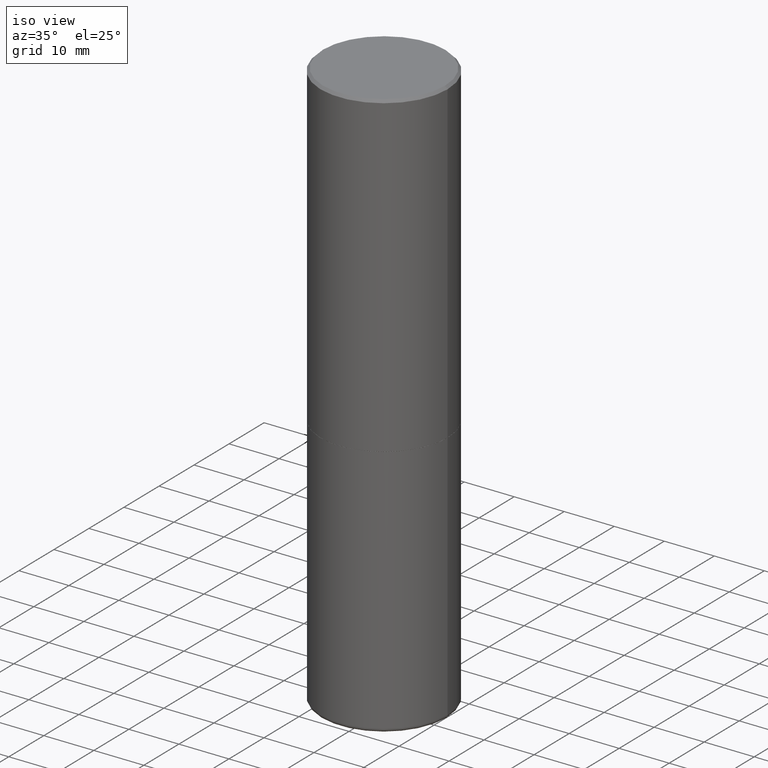
[diagram: clean part render]
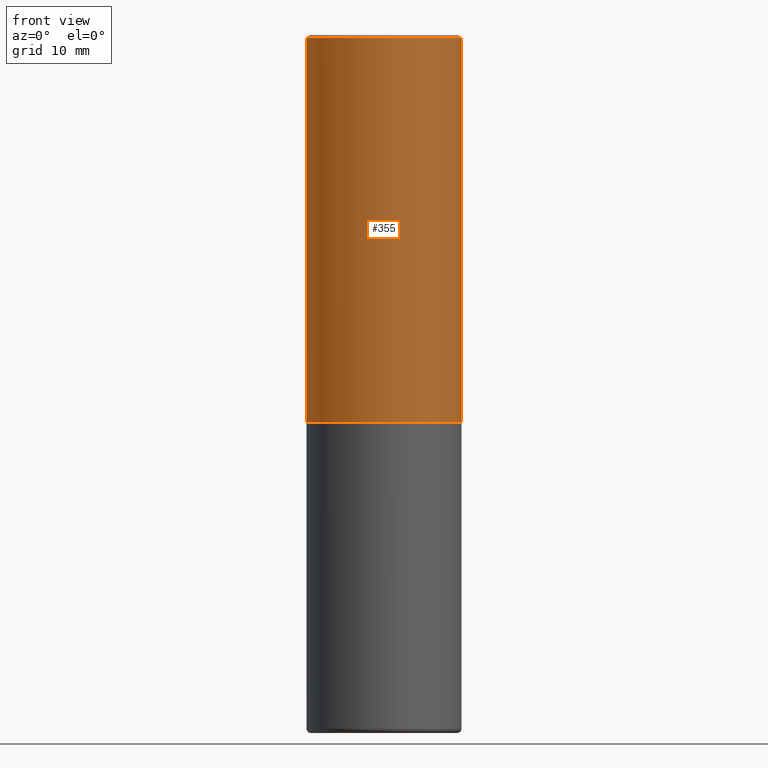
[diagram: tour spotlight — one face highlighted and labeled with its STEP entity id]
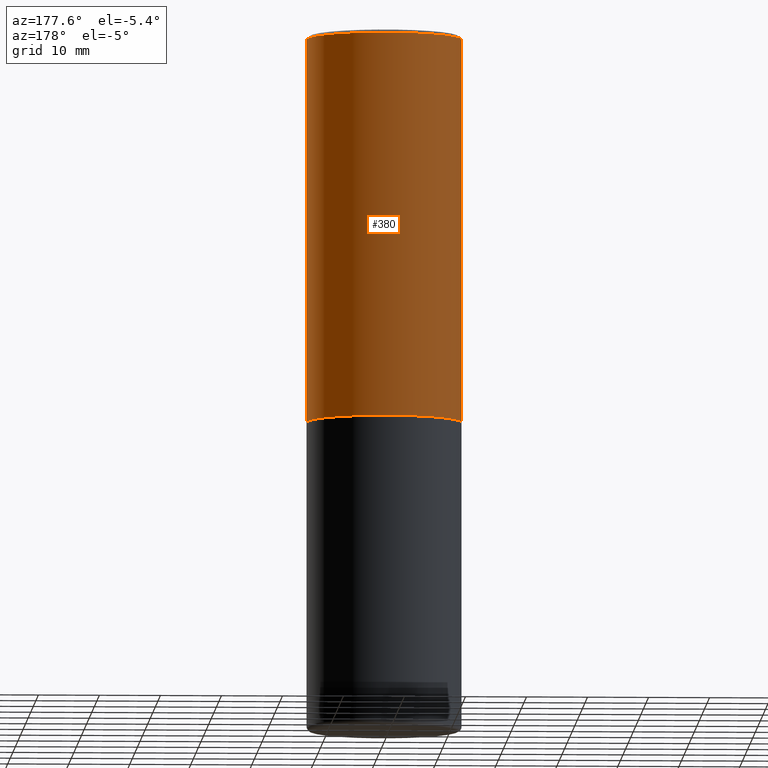
[diagram: tour spotlight — one face highlighted and labeled with its STEP entity id]
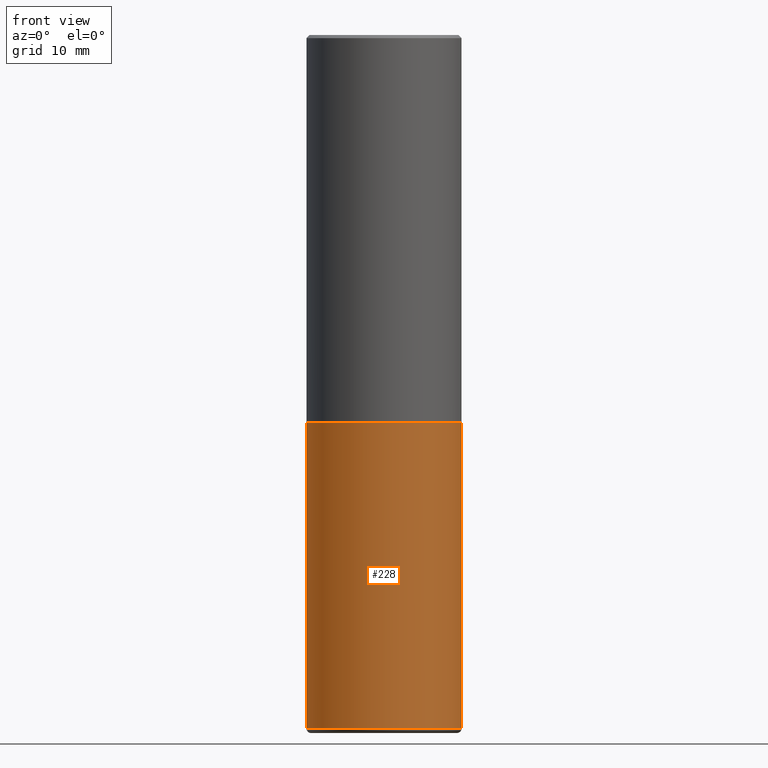
[diagram: tour spotlight — one face highlighted and labeled with its STEP entity id]
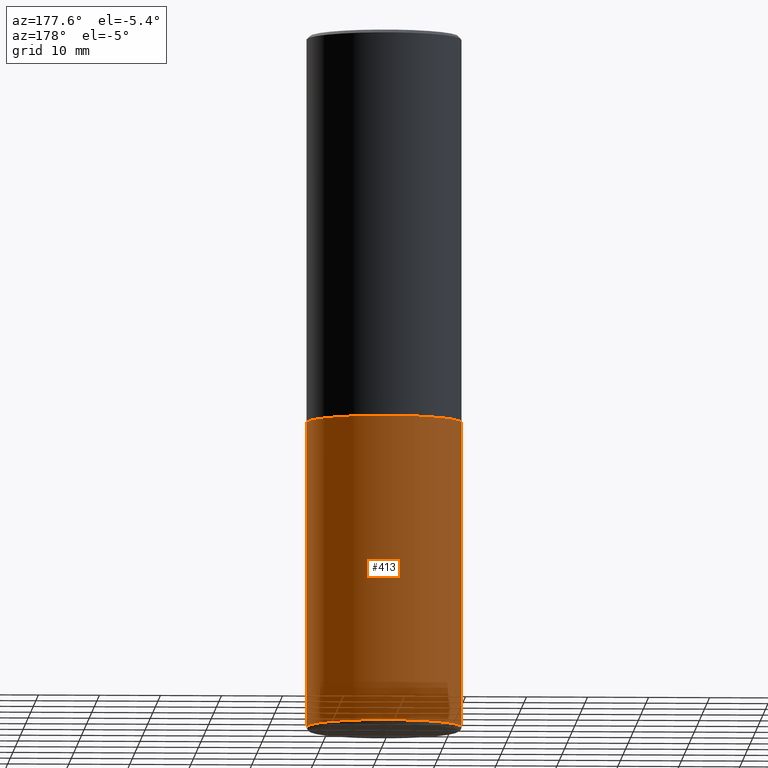
[diagram: tour spotlight — one face highlighted and labeled with its STEP entity id]
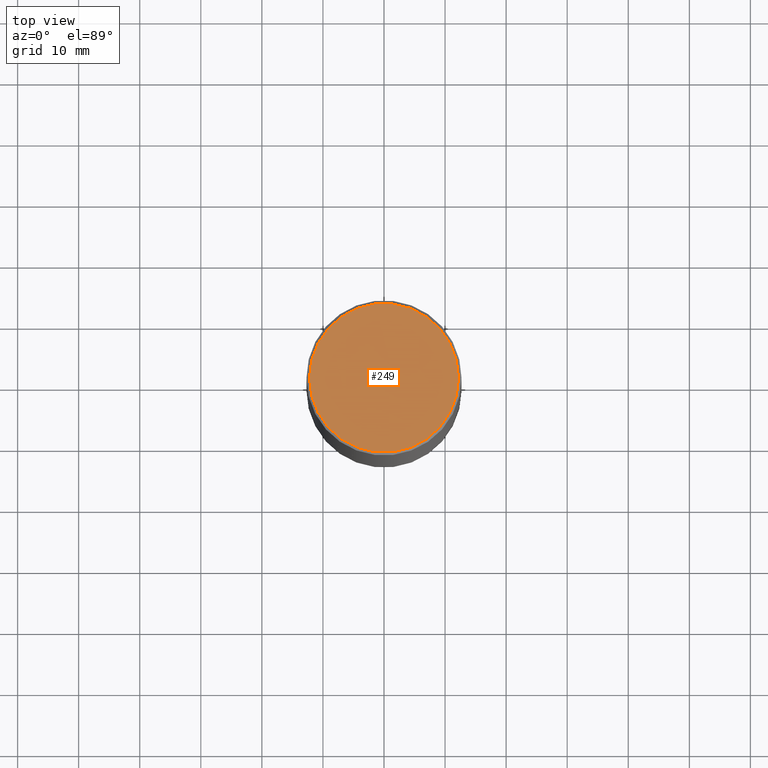
[diagram: tour spotlight — one face highlighted and labeled with its STEP entity id]
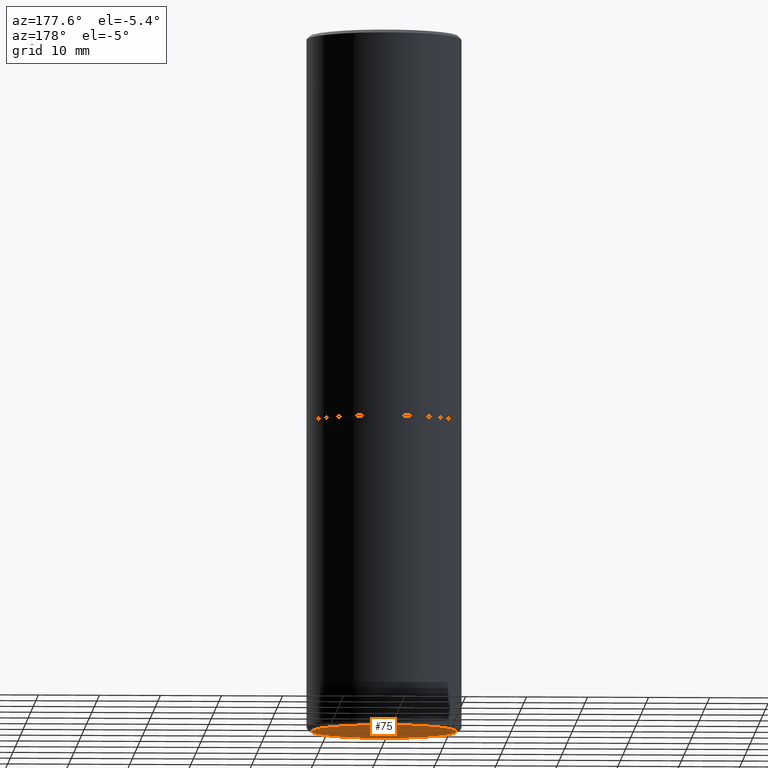
[diagram: tour spotlight — one face highlighted and labeled with its STEP entity id]
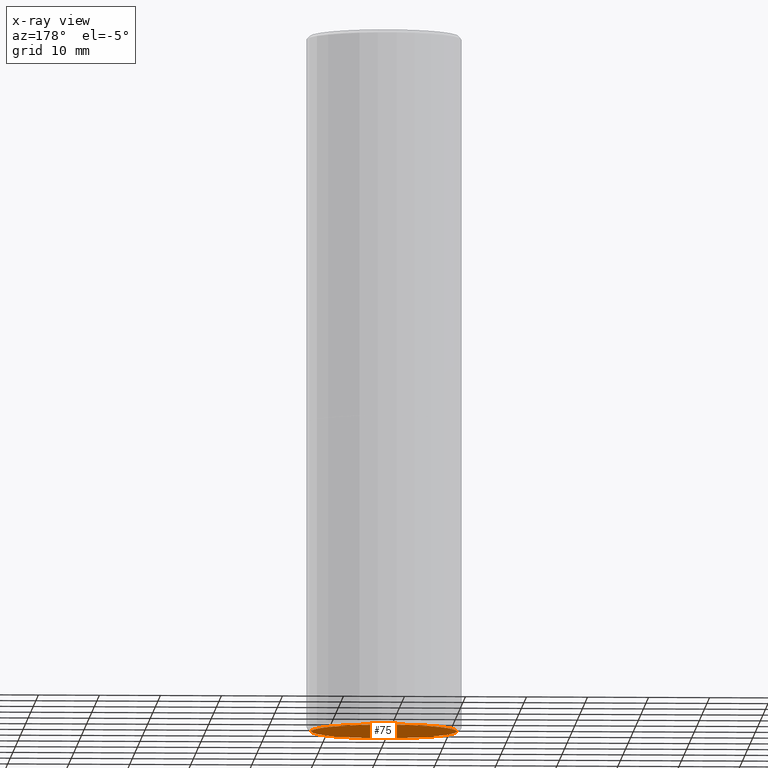
[diagram: x-ray of the same camera — body ghosted, this tour face saturated]
A machine part: a face-by-face anatomy tour. The part has 14 B-rep faces; the first image is the clean iso view, then the 6 largest visible faces are spotlighted one at a time (largest first), each with its STEP entity span.

Face 1 — front view, entity #355. In plain terms, the highlighted cylindrical surface (partial cylindrical patch) has radius 12.7 mm, axis along (-0, 0, 1).
Definition (entity closure, byte-faithful):
#1 = CARTESIAN_POINT ( 'NONE',  ( -0.4999999999999999445, 3.421651712066269663E-15, -0.02000000000000010797 ) ) ;
#15 = DIRECTION ( 'NONE',  ( 1.000000000000000000, -6.982962677686267499E-15, 4.876176775795935793E-29 ) ) ;
#48 = VERTEX_POINT ( 'NONE', #117 ) ;
#49 = DIRECTION ( 'NONE',  ( -2.445468806185136597E-29, 3.491481338843145583E-15, 1.000000000000000000 ) ) ;
#65 = AXIS2_PLACEMENT_3D ( 'NONE', #123, #216, #251 ) ;
#102 = DIRECTION ( 'NONE',  ( -2.445468806185136877E-29, 3.491481338843145188E-15, 1.000000000000000000 ) ) ;
#107 = CARTESIAN_POINT ( 'NONE',  ( 0.5000000000000001110, -3.491481338843134539E-15, 2.438088387897968457E-29 ) ) ;
#117 = CARTESIAN_POINT ( 'NONE',  ( -0.5000000000000002220, -8.448070674724393209E-16, -2.499000000000000110 ) ) ;
#123 = CARTESIAN_POINT ( 'NONE',  ( 4.890937612370299433E-31, -6.982962677686328587E-17, -0.02000000000000010797 ) ) ;
#130 = CARTESIAN_POINT ( 'NONE',  ( -0.5000000000000001110, 3.552713678800501718E-15, -2.459467545127453732E-29 ) ) ;
#150 = EDGE_CURVE ( 'NONE', #328, #264, #282, .T. ) ;
#164 = FACE_OUTER_BOUND ( 'NONE', #223, .T. ) ;
#165 = ORIENTED_EDGE ( 'NONE', *, *, #150, .F. ) ;
#168 = VERTEX_POINT ( 'NONE', #314 ) ;
#176 = DIRECTION ( 'NONE',  ( 1.000000000000000000, -6.982962677686269866E-15, 0.000000000000000000 ) ) ;
#178 = ORIENTED_EDGE ( 'NONE', *, *, #203, .F. ) ;
#197 = EDGE_CURVE ( 'NONE', #168, #264, #297, .T. ) ;
#203 = EDGE_CURVE ( 'NONE', #48, #328, #388, .T. ) ;
#207 = CIRCLE ( 'NONE', #352, 0.5000000000000002220 ) ;
#208 = ORIENTED_EDGE ( 'NONE', *, *, #418, .T. ) ;
#216 = DIRECTION ( 'NONE',  ( -2.445468806185136597E-29, 3.491481338843145583E-15, 1.000000000000000000 ) ) ;
#223 = EDGE_LOOP ( 'NONE', ( #178, #208, #298, #165 ) ) ;
#227 = CARTESIAN_POINT ( 'NONE',  ( 0.4999999999999999445, -3.500078625662628685E-15, -0.02000000000000010797 ) ) ;
#237 = DIRECTION ( 'NONE',  ( -2.445468806185136597E-29, 3.491481338843145583E-15, 1.000000000000000000 ) ) ;
#251 = DIRECTION ( 'NONE',  ( 1.000000000000000000, -6.982962677686266711E-15, 0.000000000000000000 ) ) ;
#253 = AXIS2_PLACEMENT_3D ( 'NONE', #340, #237, #15 ) ;
#257 = DIRECTION ( 'NONE',  ( -2.445468806185136877E-29, 3.491481338843145188E-15, 1.000000000000000000 ) ) ;
#264 = VERTEX_POINT ( 'NONE', #227 ) ;
#282 = CIRCLE ( 'NONE', #65, 0.4999999999999999445 ) ;
#297 = LINE ( 'NONE', #107, #343 ) ;
#298 = ORIENTED_EDGE ( 'NONE', *, *, #197, .T. ) ;
#314 = CARTESIAN_POINT ( 'NONE',  ( 0.5000000000000002220, -1.221669320461215845E-14, -2.499000000000000110 ) ) ;
#328 = VERTEX_POINT ( 'NONE', #1 ) ;
#338 = CARTESIAN_POINT ( 'NONE',  ( 6.111226546656657010E-29, -8.725211865769021935E-15, -2.499000000000000110 ) ) ;
#340 = CARTESIAN_POINT ( 'NONE',  ( 0.000000000000000000, 0.000000000000000000, 0.000000000000000000 ) ) ;
#343 = VECTOR ( 'NONE', #257, 39.37007874015748143 ) ;
#352 = AXIS2_PLACEMENT_3D ( 'NONE', #338, #49, #176 ) ;
#355 = ADVANCED_FACE ( 'NONE', ( #164 ), #364, .T. ) ;
#364 = CYLINDRICAL_SURFACE ( 'NONE', #253, 0.5000000000000001110 ) ;
#381 = VECTOR ( 'NONE', #102, 39.37007874015748143 ) ;
#388 = LINE ( 'NONE', #130, #381 ) ;
#418 = EDGE_CURVE ( 'NONE', #48, #168, #207, .T. ) ;

Face 2 — auxiliary view, entity #380. In plain terms, the highlighted cylindrical surface (partial cylindrical patch) has radius 12.7 mm, axis along (-0, 0, 1).
Definition (entity closure, byte-faithful):
#1 = CARTESIAN_POINT ( 'NONE',  ( -0.4999999999999999445, 3.421651712066269663E-15, -0.02000000000000010797 ) ) ;
#4 = CIRCLE ( 'NONE', #410, 0.4999999999999999445 ) ;
#14 = ORIENTED_EDGE ( 'NONE', *, *, #83, .T. ) ;
#19 = DIRECTION ( 'NONE',  ( -2.445468806185136597E-29, 3.491481338843145583E-15, 1.000000000000000000 ) ) ;
#47 = DIRECTION ( 'NONE',  ( 1.000000000000000000, -6.982962677686267499E-15, 4.876176775795935793E-29 ) ) ;
#48 = VERTEX_POINT ( 'NONE', #117 ) ;
#52 = DIRECTION ( 'NONE',  ( 1.000000000000000000, -6.982962677686266711E-15, 0.000000000000000000 ) ) ;
#74 = ORIENTED_EDGE ( 'NONE', *, *, #197, .F. ) ;
#77 = EDGE_LOOP ( 'NONE', ( #14, #136, #266, #74 ) ) ;
#82 = CYLINDRICAL_SURFACE ( 'NONE', #344, 0.5000000000000001110 ) ;
#83 = EDGE_CURVE ( 'NONE', #168, #48, #409, .T. ) ;
#102 = DIRECTION ( 'NONE',  ( -2.445468806185136877E-29, 3.491481338843145188E-15, 1.000000000000000000 ) ) ;
#107 = CARTESIAN_POINT ( 'NONE',  ( 0.5000000000000001110, -3.491481338843134539E-15, 2.438088387897968457E-29 ) ) ;
#117 = CARTESIAN_POINT ( 'NONE',  ( -0.5000000000000002220, -8.448070674724393209E-16, -2.499000000000000110 ) ) ;
#121 = CARTESIAN_POINT ( 'NONE',  ( 6.111226546656657010E-29, -8.725211865769021935E-15, -2.499000000000000110 ) ) ;
#130 = CARTESIAN_POINT ( 'NONE',  ( -0.5000000000000001110, 3.552713678800501718E-15, -2.459467545127453732E-29 ) ) ;
#136 = ORIENTED_EDGE ( 'NONE', *, *, #203, .T. ) ;
#145 = CARTESIAN_POINT ( 'NONE',  ( 4.890937612370299433E-31, -6.982962677686328587E-17, -0.02000000000000010797 ) ) ;
#168 = VERTEX_POINT ( 'NONE', #314 ) ;
#173 = DIRECTION ( 'NONE',  ( -2.445468806185136597E-29, 3.491481338843145583E-15, 1.000000000000000000 ) ) ;
#191 = AXIS2_PLACEMENT_3D ( 'NONE', #121, #341, #408 ) ;
#197 = EDGE_CURVE ( 'NONE', #168, #264, #297, .T. ) ;
#203 = EDGE_CURVE ( 'NONE', #48, #328, #388, .T. ) ;
#227 = CARTESIAN_POINT ( 'NONE',  ( 0.4999999999999999445, -3.500078625662628685E-15, -0.02000000000000010797 ) ) ;
#257 = DIRECTION ( 'NONE',  ( -2.445468806185136877E-29, 3.491481338843145188E-15, 1.000000000000000000 ) ) ;
#264 = VERTEX_POINT ( 'NONE', #227 ) ;
#266 = ORIENTED_EDGE ( 'NONE', *, *, #389, .F. ) ;
#276 = FACE_OUTER_BOUND ( 'NONE', #77, .T. ) ;
#297 = LINE ( 'NONE', #107, #343 ) ;
#314 = CARTESIAN_POINT ( 'NONE',  ( 0.5000000000000002220, -1.221669320461215845E-14, -2.499000000000000110 ) ) ;
#328 = VERTEX_POINT ( 'NONE', #1 ) ;
#341 = DIRECTION ( 'NONE',  ( -2.445468806185136597E-29, 3.491481338843145583E-15, 1.000000000000000000 ) ) ;
#343 = VECTOR ( 'NONE', #257, 39.37007874015748143 ) ;
#344 = AXIS2_PLACEMENT_3D ( 'NONE', #399, #173, #47 ) ;
#380 = ADVANCED_FACE ( 'NONE', ( #276 ), #82, .T. ) ;
#381 = VECTOR ( 'NONE', #102, 39.37007874015748143 ) ;
#388 = LINE ( 'NONE', #130, #381 ) ;
#389 = EDGE_CURVE ( 'NONE', #264, #328, #4, .T. ) ;
#399 = CARTESIAN_POINT ( 'NONE',  ( 0.000000000000000000, 0.000000000000000000, 0.000000000000000000 ) ) ;
#408 = DIRECTION ( 'NONE',  ( 1.000000000000000000, -6.982962677686269866E-15, 0.000000000000000000 ) ) ;
#409 = CIRCLE ( 'NONE', #191, 0.5000000000000002220 ) ;
#410 = AXIS2_PLACEMENT_3D ( 'NONE', #145, #19, #52 ) ;

Face 3 — front view, entity #228. In plain terms, the highlighted cylindrical surface (partial cylindrical patch) has radius 12.7 mm, axis along (-0, 0, 1).
Definition (entity closure, byte-faithful):
#2 = CARTESIAN_POINT ( 'NONE',  ( 0.5000000000000000000, -1.222018468595099830E-14, -2.500000000000000000 ) ) ;
#20 = LINE ( 'NONE', #273, #54 ) ;
#25 = VERTEX_POINT ( 'NONE', #58 ) ;
#30 = AXIS2_PLACEMENT_3D ( 'NONE', #60, #101, #160 ) ;
#39 = VECTOR ( 'NONE', #174, 39.37007874015748143 ) ;
#46 = ORIENTED_EDGE ( 'NONE', *, *, #275, .F. ) ;
#54 = VECTOR ( 'NONE', #183, 39.37007874015748143 ) ;
#57 = EDGE_CURVE ( 'NONE', #25, #369, #309, .T. ) ;
#58 = CARTESIAN_POINT ( 'NONE',  ( -0.4999999999999998335, -1.205420790582835944E-14, -4.469999999999999751 ) ) ;
#60 = CARTESIAN_POINT ( 'NONE',  ( 0.000000000000000000, 0.000000000000000000, 0.000000000000000000 ) ) ;
#61 = AXIS2_PLACEMENT_3D ( 'NONE', #391, #289, #330 ) ;
#72 = ORIENTED_EDGE ( 'NONE', *, *, #57, .F. ) ;
#87 = DIRECTION ( 'NONE',  ( 1.000000000000000000, -6.982962677686262766E-15, 0.000000000000000000 ) ) ;
#101 = DIRECTION ( 'NONE',  ( -2.445468806185136597E-29, 3.491481338843145583E-15, 1.000000000000000000 ) ) ;
#104 = CYLINDRICAL_SURFACE ( 'NONE', #30, 0.5000000000000000000 ) ;
#108 = EDGE_CURVE ( 'NONE', #131, #337, #20, .T. ) ;
#110 = CARTESIAN_POINT ( 'NONE',  ( -0.5000000000000000000, -8.615098787067861728E-15, -2.500000000000000000 ) ) ;
#127 = EDGE_CURVE ( 'NONE', #25, #131, #267, .T. ) ;
#131 = VERTEX_POINT ( 'NONE', #181 ) ;
#141 = ORIENTED_EDGE ( 'NONE', *, *, #108, .T. ) ;
#143 = CARTESIAN_POINT ( 'NONE',  ( -0.5000000000000000000, 3.552713678800500929E-15, -2.459467545127452891E-29 ) ) ;
#153 = CARTESIAN_POINT ( 'NONE',  ( 1.093124556364756005E-28, -1.560692158462886037E-14, -4.469999999999999751 ) ) ;
#160 = DIRECTION ( 'NONE',  ( 1.000000000000000000, -6.982962677686266711E-15, 4.876176775795935793E-29 ) ) ;
#174 = DIRECTION ( 'NONE',  ( -2.445468806185136877E-29, 3.491481338843145188E-15, 1.000000000000000000 ) ) ;
#181 = CARTESIAN_POINT ( 'NONE',  ( 0.4999999999999998335, -1.909840292347199373E-14, -4.469999999999999751 ) ) ;
#183 = DIRECTION ( 'NONE',  ( -2.445468806185136877E-29, 3.491481338843145188E-15, 1.000000000000000000 ) ) ;
#194 = FACE_OUTER_BOUND ( 'NONE', #395, .T. ) ;
#228 = ADVANCED_FACE ( 'NONE', ( #194 ), #104, .T. ) ;
#267 = CIRCLE ( 'NONE', #336, 0.5000000000000000000 ) ;
#273 = CARTESIAN_POINT ( 'NONE',  ( 0.5000000000000000000, -3.491481338843133355E-15, 2.438088387897967896E-29 ) ) ;
#275 = EDGE_CURVE ( 'NONE', #369, #337, #370, .T. ) ;
#283 = DIRECTION ( 'NONE',  ( -2.445468806185136597E-29, 3.491481338843145583E-15, 1.000000000000000000 ) ) ;
#289 = DIRECTION ( 'NONE',  ( -2.445468806185136597E-29, 3.491481338843145583E-15, 1.000000000000000000 ) ) ;
#309 = LINE ( 'NONE', #143, #39 ) ;
#330 = DIRECTION ( 'NONE',  ( 1.000000000000000000, -6.982962677686269077E-15, 0.000000000000000000 ) ) ;
#336 = AXIS2_PLACEMENT_3D ( 'NONE', #153, #283, #87 ) ;
#337 = VERTEX_POINT ( 'NONE', #2 ) ;
#369 = VERTEX_POINT ( 'NONE', #110 ) ;
#370 = CIRCLE ( 'NONE', #61, 0.5000000000000000000 ) ;
#391 = CARTESIAN_POINT ( 'NONE',  ( 6.113672015462842613E-29, -8.728703347107864943E-15, -2.500000000000000000 ) ) ;
#395 = EDGE_LOOP ( 'NONE', ( #72, #400, #141, #46 ) ) ;
#400 = ORIENTED_EDGE ( 'NONE', *, *, #127, .T. ) ;

Face 4 — auxiliary view, entity #413. In plain terms, the highlighted cylindrical surface (partial cylindrical patch) has radius 12.7 mm, axis along (-0, 0, 1).
Definition (entity closure, byte-faithful):
#2 = CARTESIAN_POINT ( 'NONE',  ( 0.5000000000000000000, -1.222018468595099830E-14, -2.500000000000000000 ) ) ;
#6 = ORIENTED_EDGE ( 'NONE', *, *, #290, .T. ) ;
#20 = LINE ( 'NONE', #273, #54 ) ;
#22 = AXIS2_PLACEMENT_3D ( 'NONE', #209, #140, #372 ) ;
#25 = VERTEX_POINT ( 'NONE', #58 ) ;
#31 = AXIS2_PLACEMENT_3D ( 'NONE', #67, #288, #326 ) ;
#37 = EDGE_CURVE ( 'NONE', #337, #369, #205, .T. ) ;
#39 = VECTOR ( 'NONE', #174, 39.37007874015748143 ) ;
#54 = VECTOR ( 'NONE', #183, 39.37007874015748143 ) ;
#56 = DIRECTION ( 'NONE',  ( -2.445468806185136597E-29, 3.491481338843145583E-15, 1.000000000000000000 ) ) ;
#57 = EDGE_CURVE ( 'NONE', #25, #369, #309, .T. ) ;
#58 = CARTESIAN_POINT ( 'NONE',  ( -0.4999999999999998335, -1.205420790582835944E-14, -4.469999999999999751 ) ) ;
#67 = CARTESIAN_POINT ( 'NONE',  ( 1.093124556364756005E-28, -1.560692158462886037E-14, -4.469999999999999751 ) ) ;
#76 = FACE_OUTER_BOUND ( 'NONE', #296, .T. ) ;
#108 = EDGE_CURVE ( 'NONE', #131, #337, #20, .T. ) ;
#110 = CARTESIAN_POINT ( 'NONE',  ( -0.5000000000000000000, -8.615098787067861728E-15, -2.500000000000000000 ) ) ;
#131 = VERTEX_POINT ( 'NONE', #181 ) ;
#140 = DIRECTION ( 'NONE',  ( -2.445468806185136597E-29, 3.491481338843145583E-15, 1.000000000000000000 ) ) ;
#142 = CYLINDRICAL_SURFACE ( 'NONE', #22, 0.5000000000000000000 ) ;
#143 = CARTESIAN_POINT ( 'NONE',  ( -0.5000000000000000000, 3.552713678800500929E-15, -2.459467545127452891E-29 ) ) ;
#174 = DIRECTION ( 'NONE',  ( -2.445468806185136877E-29, 3.491481338843145188E-15, 1.000000000000000000 ) ) ;
#181 = CARTESIAN_POINT ( 'NONE',  ( 0.4999999999999998335, -1.909840292347199373E-14, -4.469999999999999751 ) ) ;
#183 = DIRECTION ( 'NONE',  ( -2.445468806185136877E-29, 3.491481338843145188E-15, 1.000000000000000000 ) ) ;
#205 = CIRCLE ( 'NONE', #415, 0.5000000000000000000 ) ;
#209 = CARTESIAN_POINT ( 'NONE',  ( 0.000000000000000000, 0.000000000000000000, 0.000000000000000000 ) ) ;
#262 = ORIENTED_EDGE ( 'NONE', *, *, #57, .T. ) ;
#273 = CARTESIAN_POINT ( 'NONE',  ( 0.5000000000000000000, -3.491481338843133355E-15, 2.438088387897967896E-29 ) ) ;
#288 = DIRECTION ( 'NONE',  ( -2.445468806185136597E-29, 3.491481338843145583E-15, 1.000000000000000000 ) ) ;
#290 = EDGE_CURVE ( 'NONE', #131, #25, #292, .T. ) ;
#292 = CIRCLE ( 'NONE', #31, 0.5000000000000000000 ) ;
#296 = EDGE_LOOP ( 'NONE', ( #6, #262, #363, #387 ) ) ;
#309 = LINE ( 'NONE', #143, #39 ) ;
#312 = DIRECTION ( 'NONE',  ( 1.000000000000000000, -6.982962677686269077E-15, 0.000000000000000000 ) ) ;
#326 = DIRECTION ( 'NONE',  ( 1.000000000000000000, -6.982962677686262766E-15, 0.000000000000000000 ) ) ;
#337 = VERTEX_POINT ( 'NONE', #2 ) ;
#363 = ORIENTED_EDGE ( 'NONE', *, *, #37, .F. ) ;
#369 = VERTEX_POINT ( 'NONE', #110 ) ;
#372 = DIRECTION ( 'NONE',  ( 1.000000000000000000, -6.982962677686266711E-15, 4.876176775795935793E-29 ) ) ;
#387 = ORIENTED_EDGE ( 'NONE', *, *, #108, .F. ) ;
#412 = CARTESIAN_POINT ( 'NONE',  ( 6.113672015462842613E-29, -8.728703347107864943E-15, -2.500000000000000000 ) ) ;
#413 = ADVANCED_FACE ( 'NONE', ( #76 ), #142, .T. ) ;
#415 = AXIS2_PLACEMENT_3D ( 'NONE', #412, #56, #312 ) ;

Face 5 — top view, entity #249. In plain terms, the highlighted planar face has unit normal (0, -0, -1).
Definition (entity closure, byte-faithful):
#16 = VERTEX_POINT ( 'NONE', #315 ) ;
#23 = EDGE_CURVE ( 'NONE', #16, #231, #401, .T. ) ;
#36 = DIRECTION ( 'NONE',  ( -1.000000000000000000, 6.982962677686265922E-15, -4.876176775795935793E-29 ) ) ;
#45 = AXIS2_PLACEMENT_3D ( 'NONE', #245, #89, #248 ) ;
#80 = AXIS2_PLACEMENT_3D ( 'NONE', #161, #291, #128 ) ;
#89 = DIRECTION ( 'NONE',  ( -2.445468806185136597E-29, 3.491481338843145583E-15, 1.000000000000000000 ) ) ;
#128 = DIRECTION ( 'NONE',  ( 1.000000000000000000, -6.982962677686266711E-15, 4.878011538933549282E-29 ) ) ;
#157 = CIRCLE ( 'NONE', #80, 0.4800000000000000933 ) ;
#161 = CARTESIAN_POINT ( 'NONE',  ( 3.549094808739746881E-45, -5.067166779293519988E-31, -1.451294246634139896E-16 ) ) ;
#185 = AXIS2_PLACEMENT_3D ( 'NONE', #196, #358, #36 ) ;
#196 = CARTESIAN_POINT ( 'NONE',  ( 3.351822085289408337E-15, 0.4800000000000000933, -1.748475754976417141E-15 ) ) ;
#199 = CARTESIAN_POINT ( 'NONE',  ( -0.4800000000000000933, 3.386736898677838802E-15, -1.451294246634375569E-16 ) ) ;
#202 = ORIENTED_EDGE ( 'NONE', *, *, #23, .T. ) ;
#229 = EDGE_LOOP ( 'NONE', ( #334, #202 ) ) ;
#231 = VERTEX_POINT ( 'NONE', #199 ) ;
#245 = CARTESIAN_POINT ( 'NONE',  ( 3.549094808739746881E-45, -5.067166779293519988E-31, -1.451294246634139896E-16 ) ) ;
#248 = DIRECTION ( 'NONE',  ( 1.000000000000000000, -6.982962677686266711E-15, 4.878011538933549282E-29 ) ) ;
#249 = ADVANCED_FACE ( 'NONE', ( #359 ), #265, .F. ) ;
#265 = PLANE ( 'NONE',  #185 ) ;
#291 = DIRECTION ( 'NONE',  ( -2.445468806185136597E-29, 3.491481338843145583E-15, 1.000000000000000000 ) ) ;
#315 = CARTESIAN_POINT ( 'NONE',  ( 0.4800000000000000933, -3.396558832296482099E-15, -1.451294246633903978E-16 ) ) ;
#332 = EDGE_CURVE ( 'NONE', #231, #16, #157, .T. ) ;
#334 = ORIENTED_EDGE ( 'NONE', *, *, #332, .T. ) ;
#358 = DIRECTION ( 'NONE',  ( 2.438088387897960049E-29, -3.491481338843145188E-15, -1.000000000000000000 ) ) ;
#359 = FACE_OUTER_BOUND ( 'NONE', #229, .T. ) ;
#401 = CIRCLE ( 'NONE', #45, 0.4800000000000000933 ) ;

Face 6 — auxiliary view, entity #75. An x-ray twin of the same camera follows (body ghosted, this face saturated) — the face is partly hidden behind the body. In plain terms, the highlighted planar face has unit normal (0, -0, -1).
Definition (entity closure, byte-faithful):
#8 = CARTESIAN_POINT ( 'NONE',  ( -0.4700000000000000289, -1.221316153627502519E-14, -4.499999999999999112 ) ) ;
#18 = ORIENTED_EDGE ( 'NONE', *, *, #255, .F. ) ;
#27 = DIRECTION ( 'NONE',  ( 2.438088387897960049E-29, -3.491481338843145188E-15, -1.000000000000000000 ) ) ;
#41 = DIRECTION ( 'NONE',  ( 1.000000000000000000, -6.982962677686270655E-15, 0.000000000000000000 ) ) ;
#75 = ADVANCED_FACE ( 'NONE', ( #375 ), #91, .T. ) ;
#91 = PLANE ( 'NONE',  #232 ) ;
#195 = CARTESIAN_POINT ( 'NONE',  ( 1.100460962783311244E-28, -1.571166602479415374E-14, -4.499999999999999112 ) ) ;
#212 = CARTESIAN_POINT ( 'NONE',  ( 1.465753586672304986E-28, -1.048046773905407619E-14, -4.499999999999999112 ) ) ;
#230 = DIRECTION ( 'NONE',  ( 1.000000000000000000, -6.982962677686270655E-15, 0.000000000000000000 ) ) ;
#232 = AXIS2_PLACEMENT_3D ( 'NONE', #212, #27, #281 ) ;
#238 = EDGE_LOOP ( 'NONE', ( #18, #271 ) ) ;
#240 = VERTEX_POINT ( 'NONE', #8 ) ;
#242 = CIRCLE ( 'NONE', #329, 0.4700000000000000289 ) ;
#255 = EDGE_CURVE ( 'NONE', #365, #240, #384, .T. ) ;
#256 = DIRECTION ( 'NONE',  ( -2.445468806185136597E-29, 3.491481338843145583E-15, 1.000000000000000000 ) ) ;
#258 = AXIS2_PLACEMENT_3D ( 'NONE', #318, #382, #230 ) ;
#271 = ORIENTED_EDGE ( 'NONE', *, *, #308, .F. ) ;
#281 = DIRECTION ( 'NONE',  ( -1.000000000000000000, 6.982962677686265922E-15, -4.876176775795935793E-29 ) ) ;
#308 = EDGE_CURVE ( 'NONE', #240, #365, #242, .T. ) ;
#318 = CARTESIAN_POINT ( 'NONE',  ( 1.100460962783311244E-28, -1.571166602479415374E-14, -4.499999999999999112 ) ) ;
#329 = AXIS2_PLACEMENT_3D ( 'NONE', #195, #256, #41 ) ;
#333 = CARTESIAN_POINT ( 'NONE',  ( 0.4700000000000000289, -1.899365848330670036E-14, -4.499999999999999112 ) ) ;
#365 = VERTEX_POINT ( 'NONE', #333 ) ;
#375 = FACE_OUTER_BOUND ( 'NONE', #238, .T. ) ;
#382 = DIRECTION ( 'NONE',  ( -2.445468806185136597E-29, 3.491481338843145583E-15, 1.000000000000000000 ) ) ;
#384 = CIRCLE ( 'NONE', #258, 0.4700000000000000289 ) ;